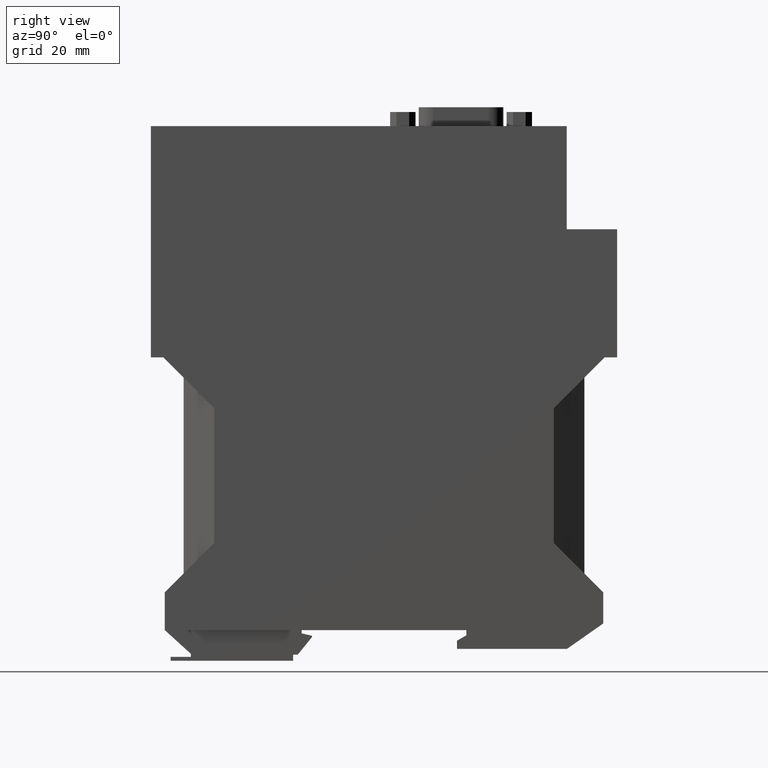
[diagram: clean part render]
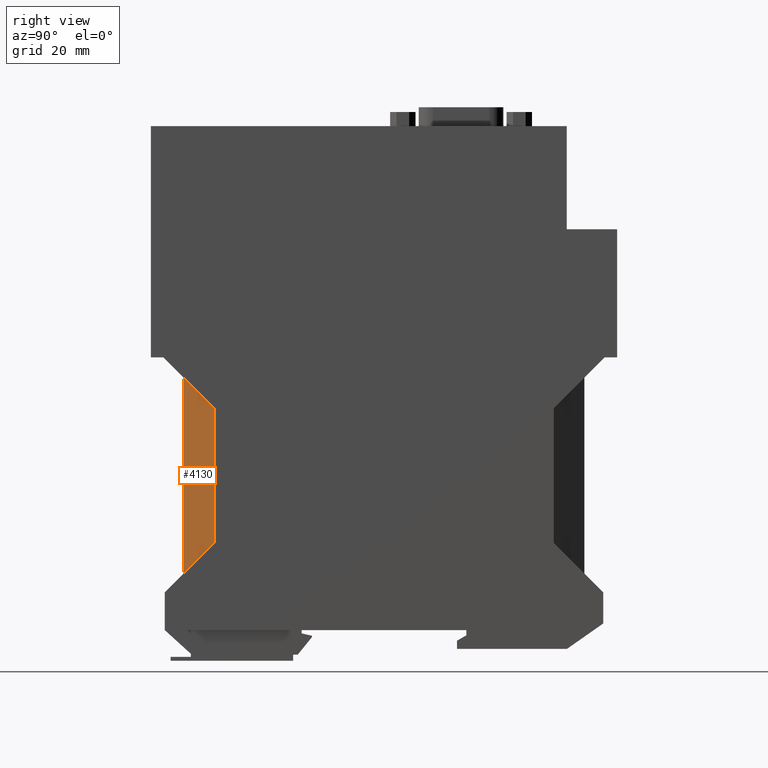
[diagram: same view with one face highlighted and labeled with its STEP entity id]
A machine part, right view. The second image highlights one B-rep face of the part: STEP entity #4130.
In plain terms, the highlighted planar face has unit normal (0.866, -0.5, 0).
Its self-contained STEP definition (entity closure, byte-faithful):
#2190=CARTESIAN_POINT('',(-53.5500000000014,18.4999999999989,22.6));
#2200=VERTEX_POINT('',#2190);
#2230=CARTESIAN_POINT('',(-53.5500000000014,24.,22.6));
#2240=DIRECTION('',(0.,-1.,0.));
#2250=VECTOR('',#2240,1.);
#2260=LINE('',#2230,#2250);
#2270=CARTESIAN_POINT('',(-53.5500000000014,47.1000000000007,22.6));
#2280=VERTEX_POINT('',#2270);
#2290=EDGE_CURVE('',#2280,#2200,#2260,.T.);
#3830=CARTESIAN_POINT('',(-30.7355117766524,53.7000000000005,
35.771950917174));
#3840=DIRECTION('',(-0.499999999999998,0.,0.86602540378444));
#3850=DIRECTION('',(0.86602540378444,0.,0.499999999999998));
#3860=AXIS2_PLACEMENT_3D('',#3830,#3840,#3850);
#3870=PLANE('',#3860);
#3880=CARTESIAN_POINT('',(24.,96.049999999986,67.373513375656));
#3890=DIRECTION('',(0.654653670708029,0.654653670707909,
0.377964473009255));
#3900=VECTOR('',#3890,1.);
#3910=LINE('',#3880,#3900);
#3920=CARTESIAN_POINT('',(-60.0500000000058,11.9999999999957,
18.8472232502649));
#3930=VERTEX_POINT('',#3920);
#3940=EDGE_CURVE('',#3930,#2200,#3910,.T.);
#3950=ORIENTED_EDGE('',*,*,#3940,.T.);
#3960=CARTESIAN_POINT('',(-60.0500000000057,24.,18.8472232502649));
#3970=DIRECTION('',(6.59999999999827E-15,1.,3.81051177665051E-15));
#3980=VECTOR('',#3970,1.);
#3990=LINE('',#3960,#3980);
#4000=CARTESIAN_POINT('',(-60.0500000000055,53.6000000000048,
18.8472232502651));
#4010=VERTEX_POINT('',#4000);
#4020=EDGE_CURVE('',#3930,#4010,#3990,.T.);
#4030=ORIENTED_EDGE('',*,*,#4020,.F.);
#4040=CARTESIAN_POINT('',(24.,-30.45,67.373513375656));
#4050=DIRECTION('',(-0.65465367070798,0.654653670707974,
-0.377964473009227));
#4060=VECTOR('',#4050,1.);
#4070=LINE('',#4040,#4060);
#4080=EDGE_CURVE('',#2280,#4010,#4070,.T.);
#4090=ORIENTED_EDGE('',*,*,#4080,.T.);
#4100=ORIENTED_EDGE('',*,*,#2290,.F.);
#4110=EDGE_LOOP('',(#4100,#4090,#4030,#3950));
#4120=FACE_OUTER_BOUND('',#4110,.T.);
#4130=ADVANCED_FACE('',(#4120),#3870,.T.);